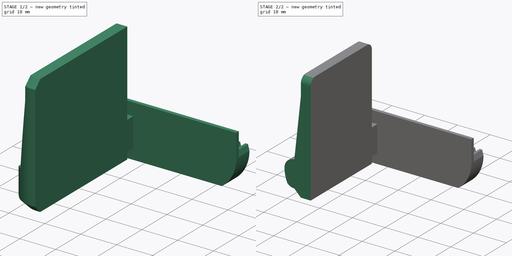
[diagram: build sequence overview — one tinted view per stage of 2, left to right]
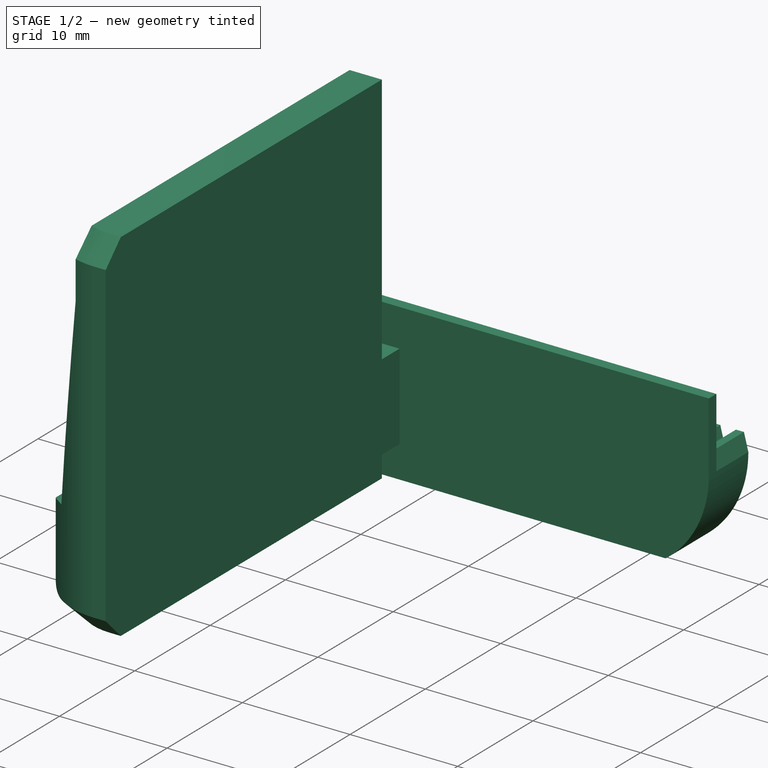
[diagram: stage 1 of 2 — iso view after this stage's code; geometry added in this stage tinted green]
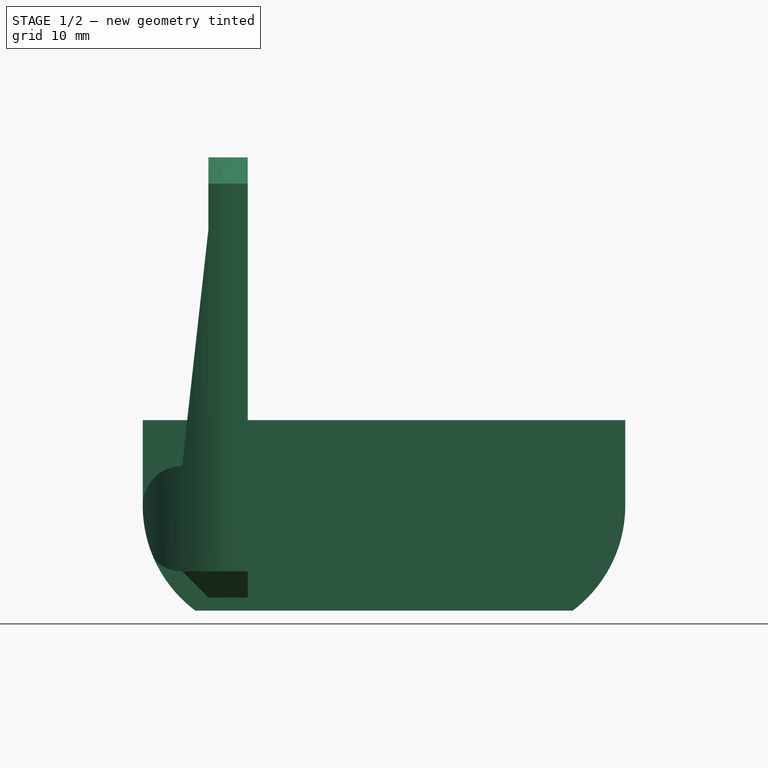
[diagram: stage 1 of 2 — front view after this stage's code; geometry added in this stage tinted green]
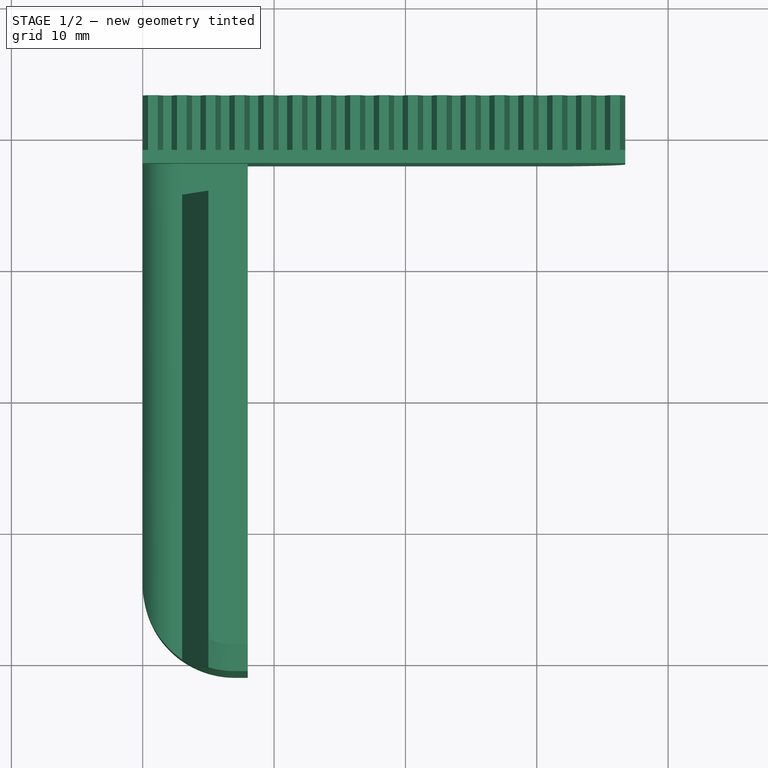
[diagram: stage 1 of 2 — top view after this stage's code; geometry added in this stage tinted green]
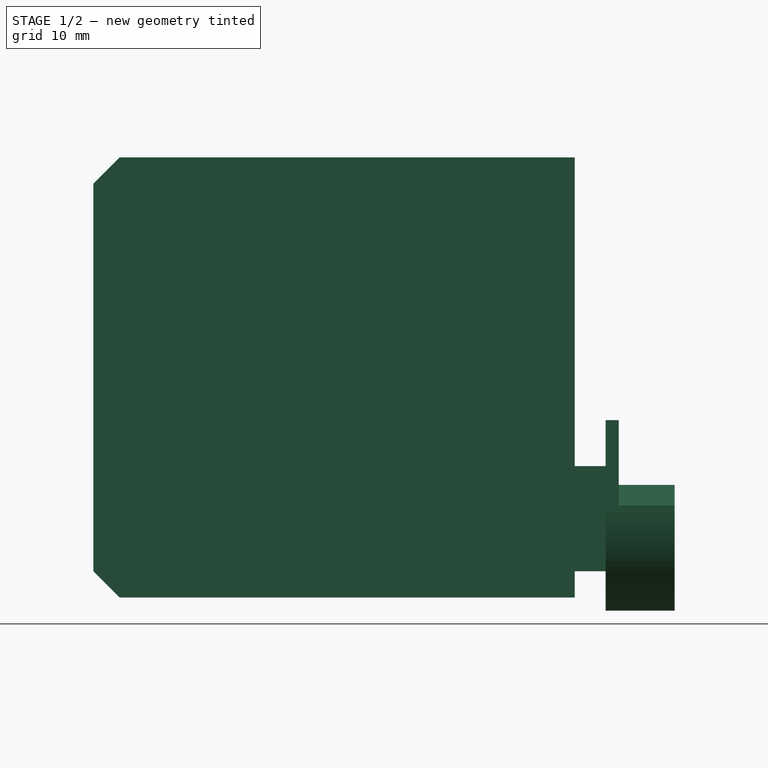
[diagram: stage 1 of 2 — right view after this stage's code; geometry added in this stage tinted green]
FCSTD DOCUMENT  (FreeCAD 0.21R33668 +26 (Git))
Label: Gripper_Right_0
License: All rights reserved
LicenseURL: https://en.wikipedia.org/wiki/All_rights_reserved
objects: Sketcher::SketchObject×2, Part::Feature×1, PartDesign::FeatureBase×1, PartDesign::Pad×1, PartDesign::Pocket×1, PartDesign::Fillet×1, PartDesign::Body×1
note: 11 computed .brp shape members not serialized (recipe doc carries the construction recipe); baked Part::Feature solids carry a one-line shape summary decoded from their .brp

FEATURE [Part::Feature] Part__Feature  label="gripper_finger v1"
  shape: bbox 36.74 x 44.25 x 34.5 mm, 95 faces (baked)
FEATURE [PartDesign::FeatureBase] BaseFeature
  BaseFeature = -> Part__Feature
FEATURE [Sketcher::SketchObject] Sketch
  ExternalGeometry = -> [BaseFeature]
  FullyConstrained = true
  MapMode = 5
  Placement = pos=(0,-31,0) rot=(0,0.707107,0.707107;3.14159rad)
  Support = -> [BaseFeature]
  sketch-geometry (9):
    g0: LineSegment StartX=-8 StartY=11 StartZ=0 EndX=-3 EndY=11 EndZ=0
    g1: LineSegment StartX=-3 StartY=11 StartZ=0 EndX=-5 EndY=9 EndZ=0
    g2: LineSegment StartX=-5 StartY=9 StartZ=0 EndX=-8 EndY=9 EndZ=0
    g3: LineSegment StartX=-8 StartY=9 StartZ=0 EndX=-8 EndY=11 EndZ=0
    g4: LineSegment StartX=-8 StartY=42.5 StartZ=0 EndX=-5 EndY=42.5 EndZ=0
    g5: LineSegment StartX=-5 StartY=42.5 StartZ=0 EndX=-5 EndY=37 EndZ=0
    g6: LineSegment StartX=-5 StartY=37 StartZ=0 EndX=-3 EndY=19 EndZ=0
    g7: LineSegment StartX=-3 StartY=19 StartZ=0 EndX=-8 EndY=19 EndZ=0
    g8: LineSegment StartX=-8 StartY=19 StartZ=0 EndX=-8 EndY=42.5 EndZ=0
  constraints (18):
    c: Coincident(g-10,g0)
    c: Coincident(g0,g-10)
    c: Coincident(g0,g1)
    c: Coincident(g1,g-8)
    c: Coincident(g1,g2)
    c: Coincident(g2,g-8)
    c: Coincident(g2,g3)
    c: Coincident(g3,g0)
    c: Coincident(g-5,g4)
    c: Coincident(g4,g-4)
    c: Coincident(g4,g5)
    c: Coincident(g5,g-6)
    c: Coincident(g5,g6)
    c: Coincident(g6,g-6)
    c: Coincident(g6,g7)
    c: Coincident(g7,g-5)
    c: Coincident(g7,g8)
    c: Coincident(g8,g4)
FEATURE [PartDesign::Pad] Pad
  BaseFeature = -> BaseFeature
  Direction = (0,1,-2e-16)
  Length = 6.65
  Length2 = 10
  Profile = -> Sketch
  ReferenceAxis = -> Sketch [N_Axis]
  Type = 0
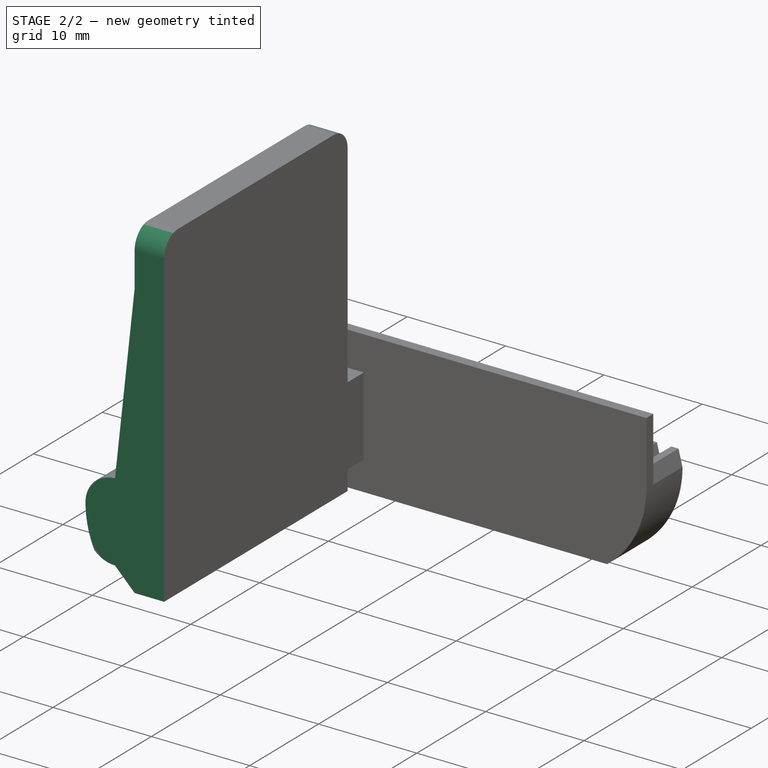
[diagram: stage 2 of 2 — iso view after this stage's code; geometry added in this stage tinted green]
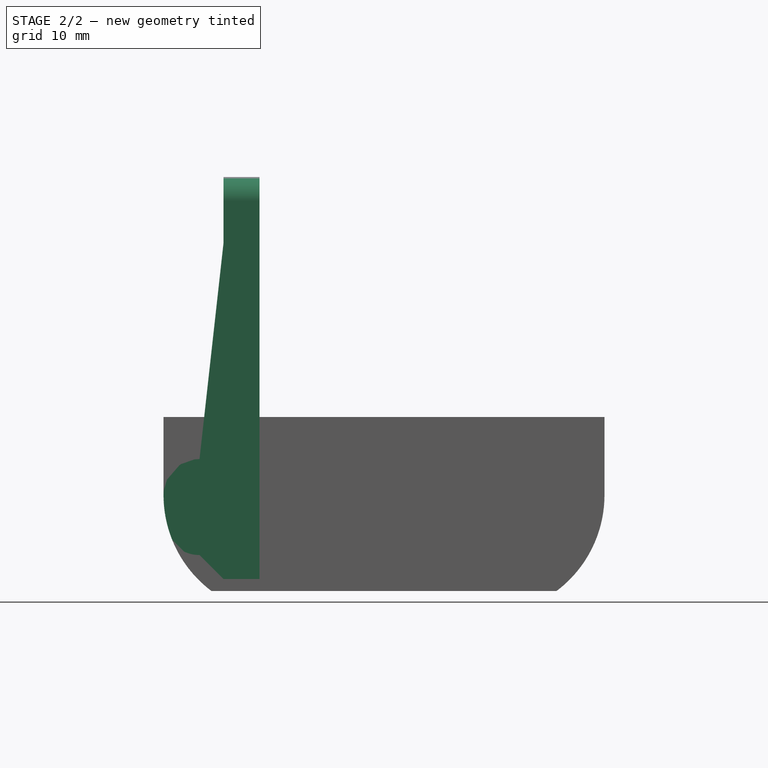
[diagram: stage 2 of 2 — front view after this stage's code; geometry added in this stage tinted green]
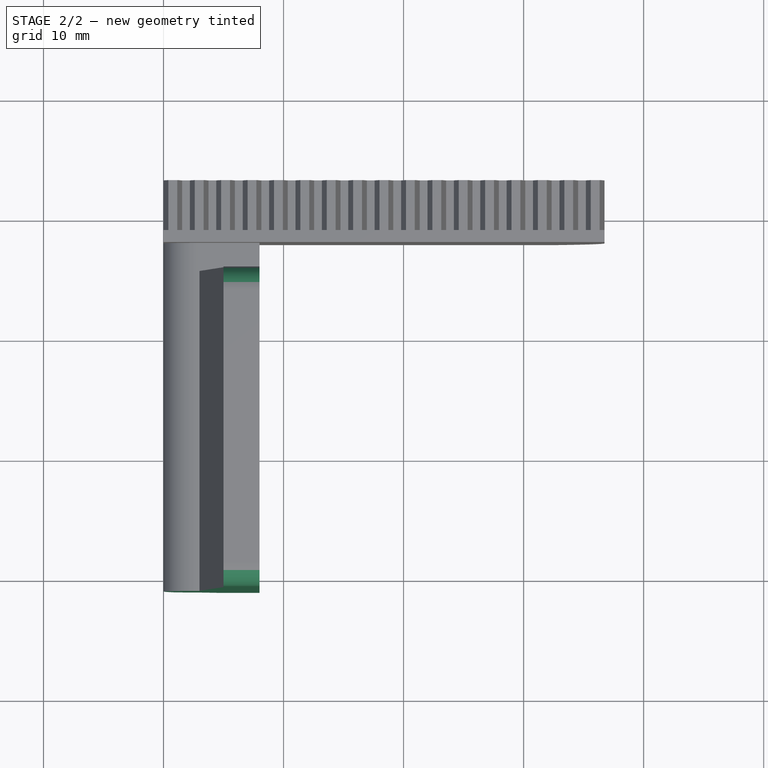
[diagram: stage 2 of 2 — top view after this stage's code; geometry added in this stage tinted green]
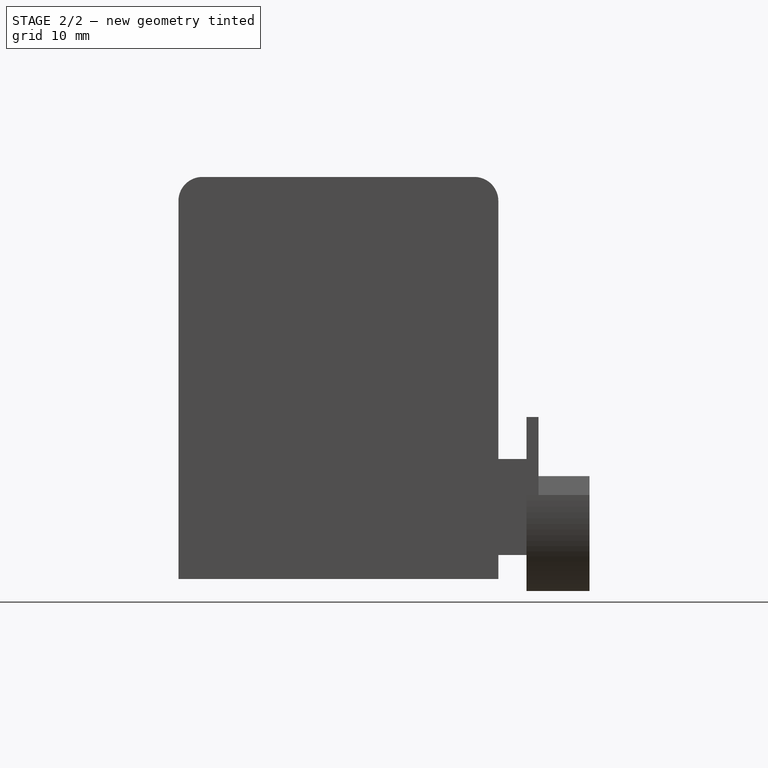
[diagram: stage 2 of 2 — right view after this stage's code; geometry added in this stage tinted green]
FEATURE [Sketcher::SketchObject] Sketch001
  ExternalGeometry = -> [Pad]
  FullyConstrained = false
  MapMode = 5
  Placement = pos=(8,0,0) rot=(0.57735,0.57735,0.57735;2.0944rad)
  Support = -> [Pad]
  sketch-geometry (4):
    g0: LineSegment StartX=-66.622 StartY=49.9911 StartZ=0 EndX=-51 EndY=49.9911 EndZ=0
    g1: LineSegment StartX=-51 StartY=49.9911 StartZ=0 EndX=-51 EndY=-4.70085 EndZ=0
    g2: LineSegment StartX=-51 StartY=-4.70085 StartZ=0 EndX=-66.622 EndY=-4.70085 EndZ=0
    g3: LineSegment StartX=-66.622 StartY=-4.70085 StartZ=0 EndX=-66.622 EndY=49.9911 EndZ=0
  constraints (9):
    c: Coincident(g0,g1)
    c: Coincident(g1,g2)
    c: Coincident(g2,g3)
    c: Coincident(g3,g0)
    c: Horizontal(g0)
    c: Horizontal(g2)
    c: Vertical(g1)
    c: Vertical(g3)
    c: DistanceX(g-3,g0) = 10
FEATURE [PartDesign::Pocket] Pocket
  BaseFeature = -> Pad
  Direction = (-1,0,0)
  Length = 5
  Length2 = 5
  Profile = -> Sketch001
  ReferenceAxis = -> Sketch001 [N_Axis]
  Type = 1
FEATURE [PartDesign::Fillet] Fillet
  Base = -> Pocket [Edge142,Edge20]
  BaseFeature = -> Pocket
  Radius = 2
  SupportTransform = false
  UseAllEdges = false
FEATURE [PartDesign::Body] Body
  BaseFeature = -> Part__Feature
  Group = -> [BaseFeature,Sketch,Pad,Sketch001,Pocket,Fillet]
  Origin = -> Origin
  Tip = -> Fillet
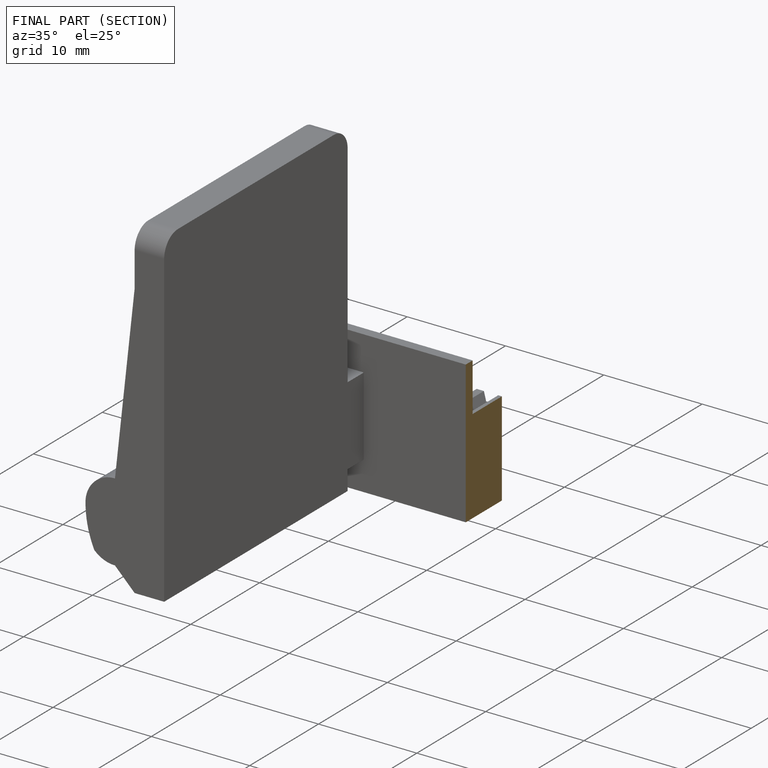
[diagram: finished part — half-section view (interior)]
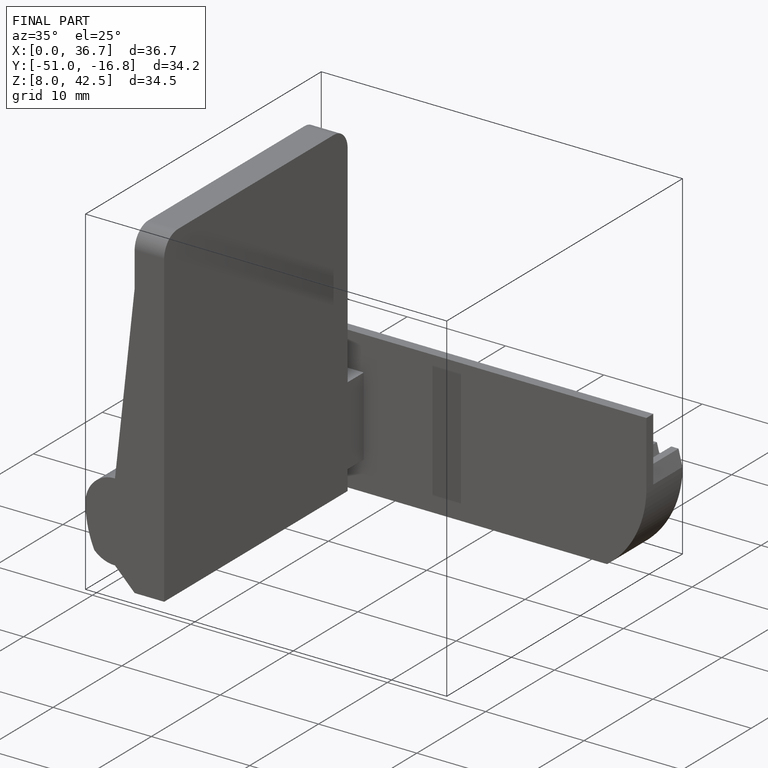
[diagram: finished part — iso view with bounding-box wireframe]
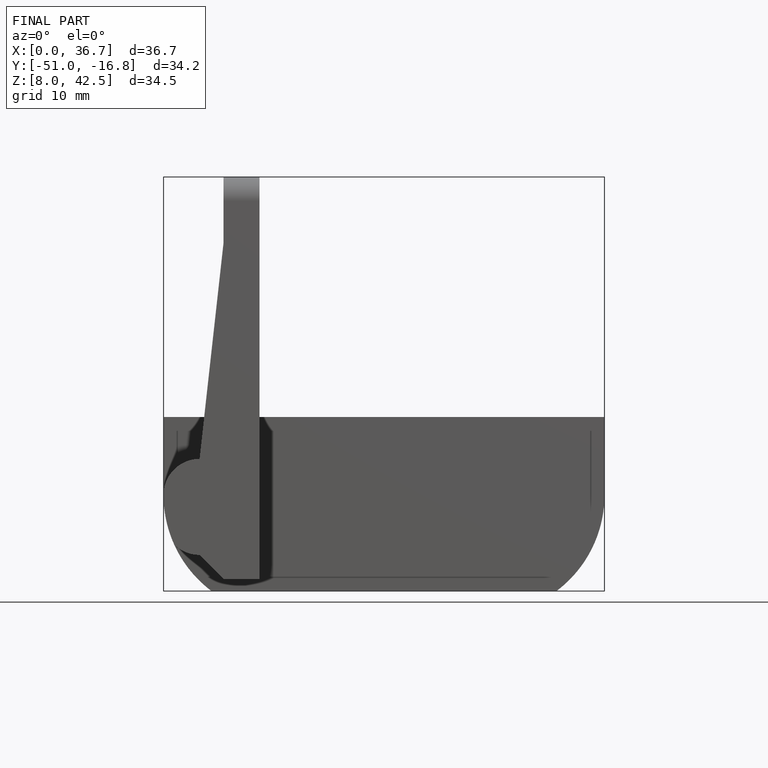
[diagram: finished part — front view with bounding-box wireframe]
